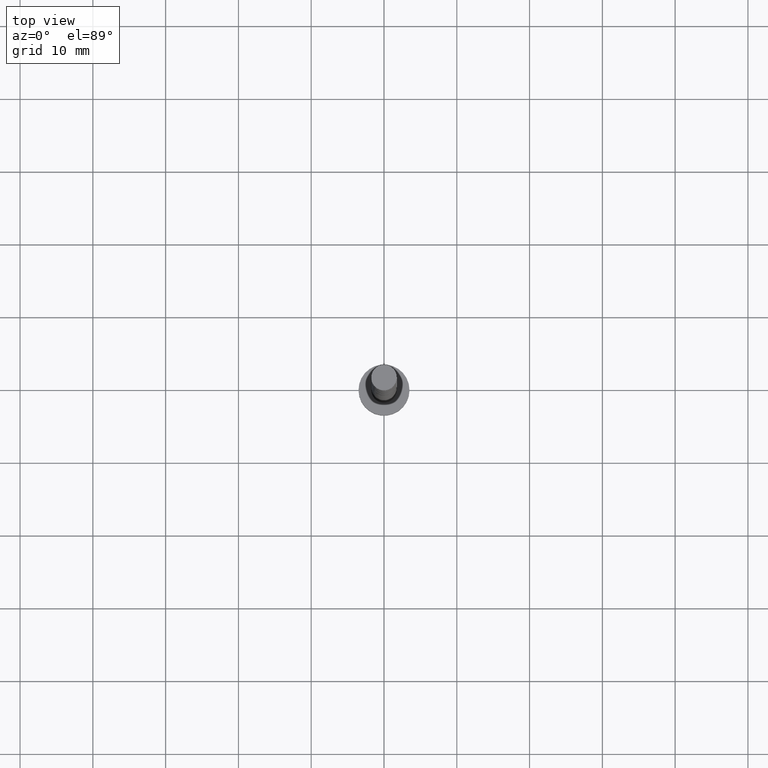
[diagram: clean part render]
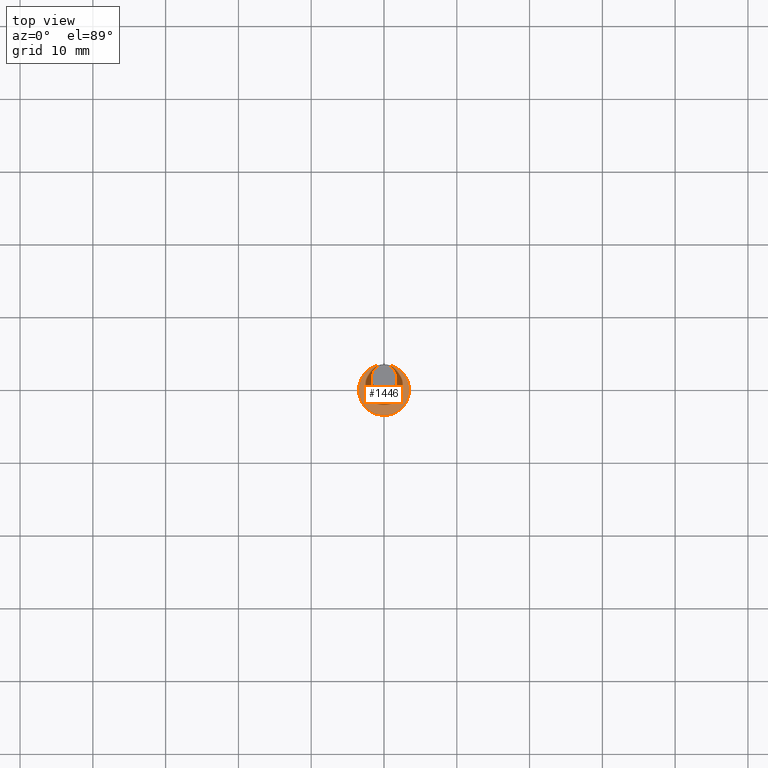
[diagram: same view with one face highlighted and labeled with its STEP entity id]
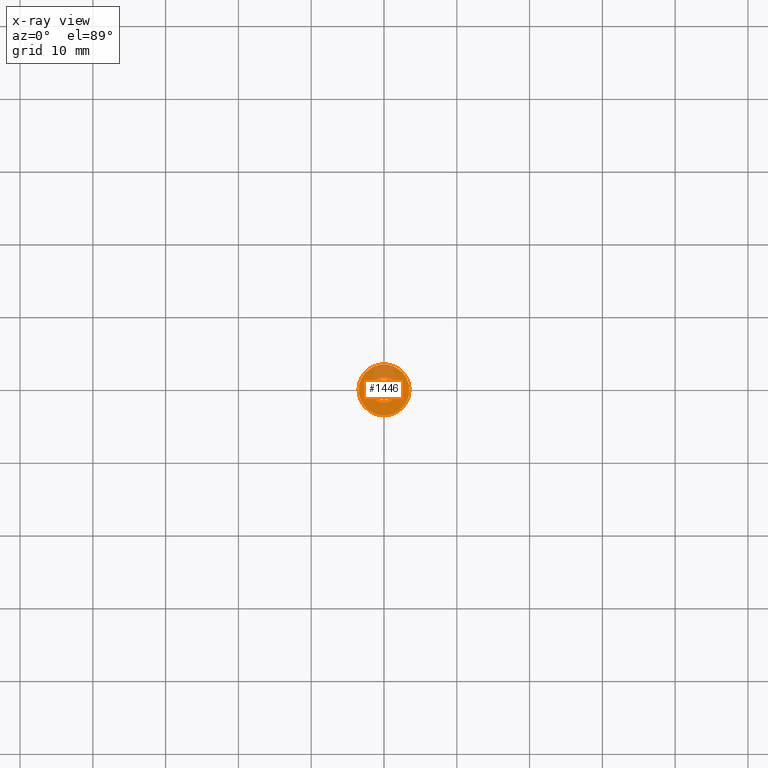
[diagram: x-ray of the same camera — body ghosted, the highlighted face saturated]
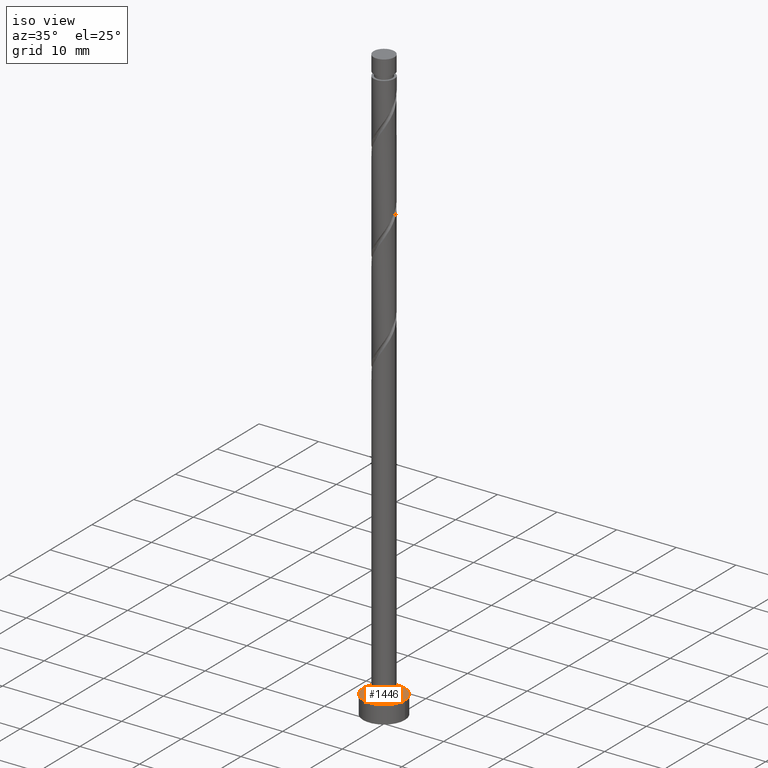
[diagram: same view with one face highlighted and labeled with its STEP entity id]
A machine part, top view. The second image highlights one B-rep face of the part: STEP entity #1446.
The next image is the same camera in x-ray: the body ghosted, the highlighted face saturated — about 21% of this face is hidden behind the body in this view.
A second angle (iso view) of the same face is appended — the face is thin or edge-on in the first view.
In plain terms, the highlighted planar face has unit normal (0, 0, 1).
Its self-contained STEP definition (entity closure, byte-faithful):
#1 = EDGE_LOOP ( 'NONE', ( #32, #1256 ) ) ;
#27 = AXIS2_PLACEMENT_3D ( 'NONE', #544, #1472, #872 ) ;
#32 = ORIENTED_EDGE ( 'NONE', *, *, #288, .F. ) ;
#144 = CARTESIAN_POINT ( 'NONE',  ( 0.000000000000000000, 0.000000000000000000, 3.000000000000000000 ) ) ;
#163 = EDGE_CURVE ( 'NONE', #274, #649, #1434, .T. ) ;
#216 = VERTEX_POINT ( 'NONE', #1209 ) ;
#247 = DIRECTION ( 'NONE',  ( 0.000000000000000000, 0.000000000000000000, 1.000000000000000000 ) ) ;
#264 = DIRECTION ( 'NONE',  ( 1.000000000000000000, 0.000000000000000000, 0.000000000000000000 ) ) ;
#272 = ORIENTED_EDGE ( 'NONE', *, *, #529, .T. ) ;
#274 = VERTEX_POINT ( 'NONE', #1269 ) ;
#280 = DIRECTION ( 'NONE',  ( 0.000000000000000000, 0.000000000000000000, 1.000000000000000000 ) ) ;
#288 = EDGE_CURVE ( 'NONE', #298, #216, #1250, .T. ) ;
#298 = VERTEX_POINT ( 'NONE', #748 ) ;
#353 = EDGE_CURVE ( 'NONE', #216, #298, #1082, .T. ) ;
#355 = AXIS2_PLACEMENT_3D ( 'NONE', #1163, #394, #264 ) ;
#394 = DIRECTION ( 'NONE',  ( 0.000000000000000000, 0.000000000000000000, 1.000000000000000000 ) ) ;
#490 = AXIS2_PLACEMENT_3D ( 'NONE', #1387, #280, #965 ) ;
#518 = CARTESIAN_POINT ( 'NONE',  ( 0.000000000000000000, 0.000000000000000000, 3.000000000000000000 ) ) ;
#529 = EDGE_CURVE ( 'NONE', #649, #274, #1458, .T. ) ;
#542 = CARTESIAN_POINT ( 'NONE',  ( -3.500000000000000444, 0.000000000000000000, 3.000000000000000000 ) ) ;
#544 = CARTESIAN_POINT ( 'NONE',  ( 0.000000000000000000, 0.000000000000000000, 3.000000000000000000 ) ) ;
#591 = ORIENTED_EDGE ( 'NONE', *, *, #163, .T. ) ;
#616 = EDGE_LOOP ( 'NONE', ( #272, #591 ) ) ;
#649 = VERTEX_POINT ( 'NONE', #542 ) ;
#736 = FACE_OUTER_BOUND ( 'NONE', #616, .T. ) ;
#748 = CARTESIAN_POINT ( 'NONE',  ( -1.750000000000000000, 0.000000000000000000, 3.000000000000000000 ) ) ;
#832 = FACE_BOUND ( 'NONE', #1, .T. ) ;
#859 = PLANE ( 'NONE',  #983 ) ;
#872 = DIRECTION ( 'NONE',  ( 1.000000000000000000, 0.000000000000000000, 0.000000000000000000 ) ) ;
#965 = DIRECTION ( 'NONE',  ( 1.000000000000000000, 0.000000000000000000, 0.000000000000000000 ) ) ;
#983 = AXIS2_PLACEMENT_3D ( 'NONE', #144, #247, #1306 ) ;
#1056 = AXIS2_PLACEMENT_3D ( 'NONE', #518, #1452, #1479 ) ;
#1082 = CIRCLE ( 'NONE', #27, 1.750000000000000000 ) ;
#1163 = CARTESIAN_POINT ( 'NONE',  ( 0.000000000000000000, 0.000000000000000000, 3.000000000000000000 ) ) ;
#1209 = CARTESIAN_POINT ( 'NONE',  ( 1.750000000000000000, 2.143131898507867804E-16, 3.000000000000000000 ) ) ;
#1250 = CIRCLE ( 'NONE', #490, 1.750000000000000000 ) ;
#1256 = ORIENTED_EDGE ( 'NONE', *, *, #353, .F. ) ;
#1269 = CARTESIAN_POINT ( 'NONE',  ( 3.500000000000000444, 4.286263797015737088E-16, 3.000000000000000000 ) ) ;
#1306 = DIRECTION ( 'NONE',  ( 1.000000000000000000, 0.000000000000000000, -0.000000000000000000 ) ) ;
#1387 = CARTESIAN_POINT ( 'NONE',  ( 0.000000000000000000, 0.000000000000000000, 3.000000000000000000 ) ) ;
#1434 = CIRCLE ( 'NONE', #355, 3.500000000000000444 ) ;
#1446 = ADVANCED_FACE ( 'NONE', ( #832, #736 ), #859, .T. ) ;
#1452 = DIRECTION ( 'NONE',  ( 0.000000000000000000, 0.000000000000000000, 1.000000000000000000 ) ) ;
#1458 = CIRCLE ( 'NONE', #1056, 3.500000000000000444 ) ;
#1472 = DIRECTION ( 'NONE',  ( 0.000000000000000000, 0.000000000000000000, 1.000000000000000000 ) ) ;
#1479 = DIRECTION ( 'NONE',  ( 1.000000000000000000, 0.000000000000000000, 0.000000000000000000 ) ) ;